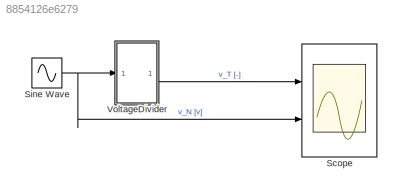
MODEL slx_8854126e6279
KIND model
CONFIG AbsTol = auto
CONFIG EnableMultiTasking = off
CONFIG FixedStep = 0.05
CONFIG MaxStep = auto
CONFIG MinStep = auto
CONFIG RelTol = 1e-3
CONFIG SampleTimeConstraint = Unconstrained
CONFIG SolverName = ode4
CONFIG StartTime = 0.0
CONFIG StopTime = 2
BLOCK [Scope] Scope
  Floating = off
  NumInputPorts = 2
  Ports = [2]
  ScopeSpecificationString = Simulink.scopes.TimeScopeBlockCfg('CurrentConfiguration', extmgr.ConfigurationSet(extmgr.Configuration('Core','General UI',true),extmgr.Configuration('Core','Source UI',true),extmgr.Configuration('Sources','WiredSimulink',true),extmgr.Configuration('Visuals','Time Domain',true,'SerializedDisplays',{struct('MinYLimReal','-0.625','MaxYLimReal','5.625','YLabelReal','','MinYLimMag','0','MaxYLimMag','1...<+1922ch>
BLOCK [Sin] Sine Wave
  Amplitude = 5
  Bias = 5
  Frequency = 2*pi
  Ports = [0, 1]
  SampleTime = 0
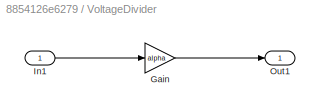
BLOCK [SubSystem] VoltageDivider
  Ports = [1, 1]
  RequestExecContextInheritance = off
BLOCK [Gain] VoltageDivider/Gain
  Gain = alpha
BLOCK [Inport] VoltageDivider/In1
BLOCK [Outport] VoltageDivider/Out1
NET Sine Wave:1 -> Scope:2, VoltageDivider:1
LINE VoltageDivider/Gain:1 -> VoltageDivider/Out1:1
LINE VoltageDivider/In1:1 -> VoltageDivider/Gain:1
LINE VoltageDivider:1 -> Scope:1
note: NET lines group one-source signal fan-out (src -> all destinations, sorted); 1:1 wires keep LINE
